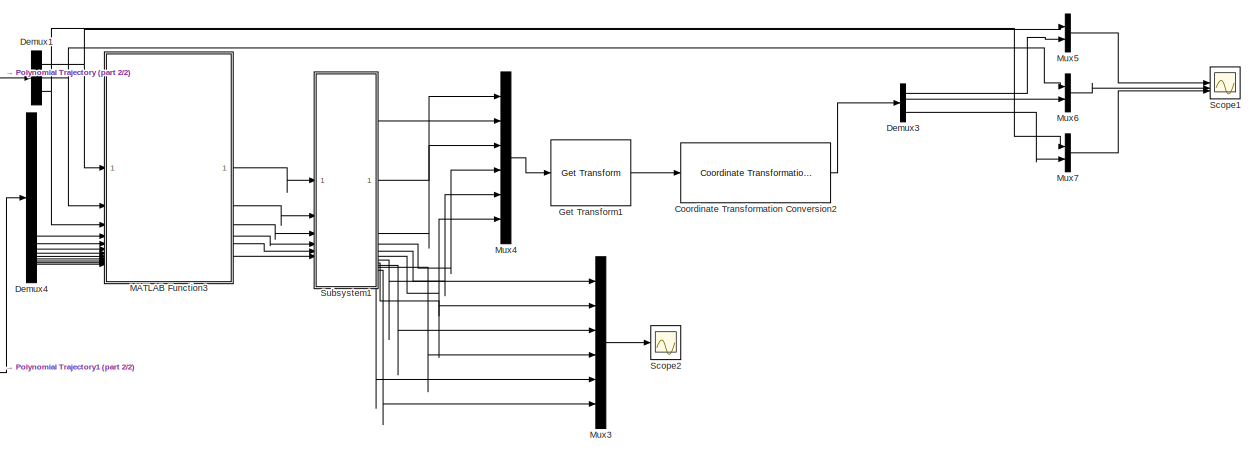
[diagram: root canvas - part 1/2, most of the canvas]
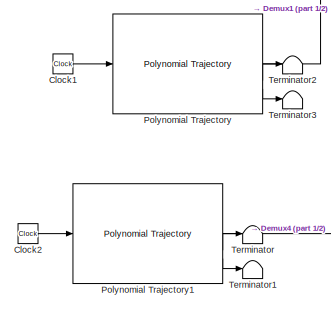
[diagram: root canvas - part 2/2, middle left region]
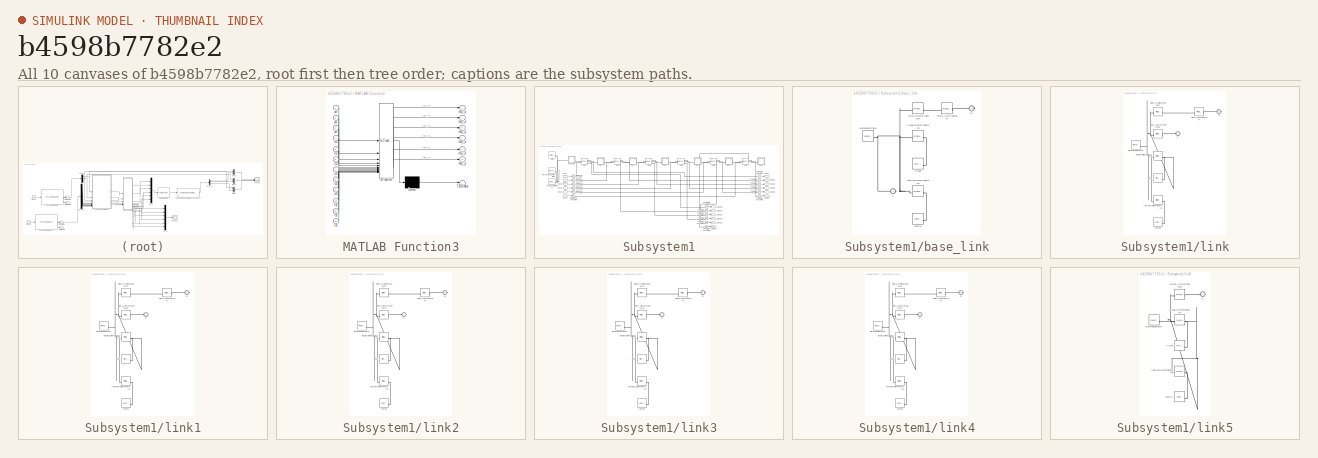
[diagram: thumbnail index - all 10 canvases of the model, root first then tree order]
MODEL slx_b4598b7782e2
KIND model
CONFIG AbsTol = auto
CONFIG EnableMultiTasking = off
CONFIG FixedStep = auto
CONFIG MaxStep = auto
CONFIG MinStep = auto
CONFIG RelTol = 1e-3
CONFIG SampleTimeConstraint = Unconstrained
CONFIG SolverName = VariableStepAuto
CONFIG StartTime = 0.0
CONFIG StopTime = 10.0
BLOCK [Clock] Clock1
BLOCK [Clock] Clock2
BLOCK [Reference] Coordinate Transformation Conversion2  REF=robotcorelib/Coordinate Transformation Conversion
  SourceBlock = robotcorelib/Coordinate Transformation Conversion
  SourceType = robotics.slcore.internal.block.CoordinateTransformationConversion
BLOCK [Demux] Demux1
  Outputs = 3
BLOCK [Demux] Demux3
  Outputs = 3
BLOCK [Demux] Demux4
  Outputs = 9
BLOCK [Reference] Get Transform1  REF=robotmaniplib/Get Transform
  SourceBlock = robotmaniplib/Get Transform
  SourceType = Get Transform
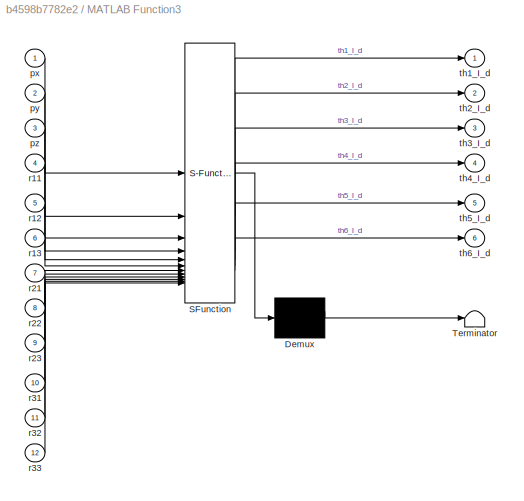
BLOCK [SubSystem] MATLAB Function3
  ErrorFcn = Stateflow.Translate.translate
  PermitHierarchicalResolution = ExplicitOnly
  SFBlockType = MATLAB Function
  TreatAsAtomicUnit = on
BLOCK [Demux] MATLAB Function3/ Demux 
  Outputs = 1
BLOCK [S-Function] MATLAB Function3/ SFunction 
  EnableBusSupport = off
  FunctionName = sf_sfun
  PortCounts = [12 7]
  SFcnIsStateOwnerBlock = off
  SFunctionDeploymentMode = off
  Tag = Stateflow S-Function 2
BLOCK [Terminator] MATLAB Function3/ Terminator 
BLOCK [Inport] MATLAB Function3/px
BLOCK [Inport] MATLAB Function3/py
  Port = 2
BLOCK [Inport] MATLAB Function3/pz
  Port = 3
BLOCK [Inport] MATLAB Function3/r11
  Port = 4
BLOCK [Inport] MATLAB Function3/r12
  Port = 5
BLOCK [Inport] MATLAB Function3/r13
  Port = 6
BLOCK [Inport] MATLAB Function3/r21
  Port = 7
BLOCK [Inport] MATLAB Function3/r22
  Port = 8
BLOCK [Inport] MATLAB Function3/r23
  Port = 9
BLOCK [Inport] MATLAB Function3/r31
  Port = 10
BLOCK [Inport] MATLAB Function3/r32
  Port = 11
BLOCK [Inport] MATLAB Function3/r33
  Port = 12
BLOCK [Outport] MATLAB Function3/th1_I_d
BLOCK [Outport] MATLAB Function3/th2_I_d
  Port = 2
BLOCK [Outport] MATLAB Function3/th3_I_d
  Port = 3
BLOCK [Outport] MATLAB Function3/th4_I_d
  Port = 4
BLOCK [Outport] MATLAB Function3/th5_I_d
  Port = 5
BLOCK [Outport] MATLAB Function3/th6_I_d
  Port = 6
BLOCK [Mux] Mux3
  DisplayOption = bar
  Inputs = 6
BLOCK [Mux] Mux4
  DisplayOption = bar
  Inputs = 6
BLOCK [Mux] Mux5
  DisplayOption = bar
  Inputs = 2
BLOCK [Mux] Mux6
  DisplayOption = bar
  Inputs = 2
BLOCK [Mux] Mux7
  DisplayOption = bar
  Inputs = 2
BLOCK [Reference] Polynomial Trajectory  REF=robotcorelib/Polynomial Trajectory
  LibrarySourceBlock = robotutilslib/Polynomial Trajectory
  SourceBlock = robotcorelib/Polynomial Trajectory
  SourceType = robotics.slcore.internal.block.PolyTrajSys
BLOCK [Reference] Polynomial Trajectory1  REF=robotcorelib/Polynomial Trajectory
  LibrarySourceBlock = robotutilslib/Polynomial Trajectory
  SourceBlock = robotcorelib/Polynomial Trajectory
  SourceType = robotics.slcore.internal.block.PolyTrajSys
BLOCK [Scope] Scope1
  Floating = off
  NumInputPorts = 3
  ScopeSpecificationString = Simulink.scopes.TimeScopeBlockCfg('CurrentConfiguration', extmgr.ConfigurationSet(extmgr.Configuration('Core','General UI',true),extmgr.Configuration('Core','Source UI',true),extmgr.Configuration('Sources','WiredSimulink',true,'DataLoggingVariableName','ScopeData2'),extmgr.Configuration('Visuals','Time Domain',true,'SerializedDisplays',{struct('MinYLimReal','-0.00297','MaxYLimReal','0.69076','YLab...<+3098ch>
BLOCK [Scope] Scope2
  Floating = off
  NumInputPorts = 1
  ScopeSpecificationString = Simulink.scopes.TimeScopeBlockCfg('CurrentConfiguration', extmgr.ConfigurationSet(extmgr.Configuration('Core','General UI',true,'FigureColor',[0 0 0]),extmgr.Configuration('Core','Source UI',true),extmgr.Configuration('Sources','WiredSimulink',true),extmgr.Configuration('Visuals','Time Domain',true,'SerializedDisplays',{struct('MinYLimReal','-1.25','MaxYLimReal','1.25','YLabelReal','','MinYLimMag'...<+1729ch>
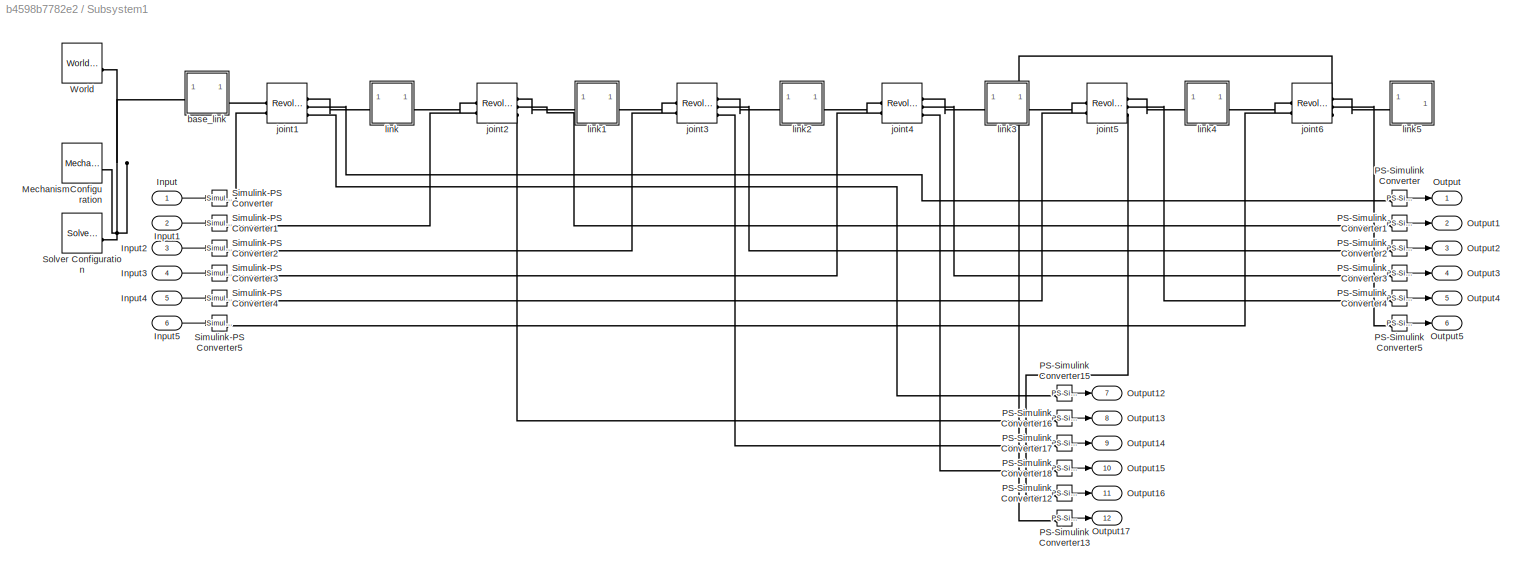
BLOCK [SubSystem] Subsystem1
BLOCK [Inport] Subsystem1/Input
BLOCK [Inport] Subsystem1/Input1
  Port = 2
BLOCK [Inport] Subsystem1/Input2
  Port = 3
BLOCK [Inport] Subsystem1/Input3
  Port = 4
BLOCK [Inport] Subsystem1/Input4
  Port = 5
BLOCK [Inport] Subsystem1/Input5
  Port = 6
BLOCK [Reference] Subsystem1/MechanismConfiguration  REF=sm_lib/Utilities/Mechanism
Configuration
  SourceBlock = sm_lib/Utilities/Mechanism\nConfiguration
  SourceType = Mechanism\nConfiguration
BLOCK [Outport] Subsystem1/Output
BLOCK [Outport] Subsystem1/Output1
  Port = 2
BLOCK [Outport] Subsystem1/Output12
  Port = 7
BLOCK [Outport] Subsystem1/Output13
  Port = 8
BLOCK [Outport] Subsystem1/Output14
  Port = 9
BLOCK [Outport] Subsystem1/Output15
  Port = 10
BLOCK [Outport] Subsystem1/Output16
  Port = 11
BLOCK [Outport] Subsystem1/Output17
  Port = 12
BLOCK [Outport] Subsystem1/Output2
  Port = 3
BLOCK [Outport] Subsystem1/Output3
  Port = 4
BLOCK [Outport] Subsystem1/Output4
  Port = 5
BLOCK [Outport] Subsystem1/Output5
  Port = 6
BLOCK [Reference] Subsystem1/PS-Simulink Converter  REF=nesl_utility/PS-Simulink
Converter
  SourceBlock = nesl_utility/PS-Simulink\nConverter
  SourceType = PS-Simulink\nConverter
BLOCK [Reference] Subsystem1/PS-Simulink Converter1  REF=nesl_utility/PS-Simulink
Converter
  SourceBlock = nesl_utility/PS-Simulink\nConverter
  SourceType = PS-Simulink\nConverter
BLOCK [Reference] Subsystem1/PS-Simulink Converter12  REF=nesl_utility/PS-Simulink
Converter
  SourceBlock = nesl_utility/PS-Simulink\nConverter
  SourceType = PS-Simulink\nConverter
BLOCK [Reference] Subsystem1/PS-Simulink Converter13  REF=nesl_utility/PS-Simulink
Converter
  SourceBlock = nesl_utility/PS-Simulink\nConverter
  SourceType = PS-Simulink\nConverter
BLOCK [Reference] Subsystem1/PS-Simulink Converter15  REF=nesl_utility/PS-Simulink
Converter
  SourceBlock = nesl_utility/PS-Simulink\nConverter
  SourceType = PS-Simulink\nConverter
BLOCK [Reference] Subsystem1/PS-Simulink Converter16  REF=nesl_utility/PS-Simulink
Converter
  SourceBlock = nesl_utility/PS-Simulink\nConverter
  SourceType = PS-Simulink\nConverter
BLOCK [Reference] Subsystem1/PS-Simulink Converter17  REF=nesl_utility/PS-Simulink
Converter
  SourceBlock = nesl_utility/PS-Simulink\nConverter
  SourceType = PS-Simulink\nConverter
BLOCK [Reference] Subsystem1/PS-Simulink Converter18  REF=nesl_utility/PS-Simulink
Converter
  SourceBlock = nesl_utility/PS-Simulink\nConverter
  SourceType = PS-Simulink\nConverter
BLOCK [Reference] Subsystem1/PS-Simulink Converter2  REF=nesl_utility/PS-Simulink
Converter
  SourceBlock = nesl_utility/PS-Simulink\nConverter
  SourceType = PS-Simulink\nConverter
BLOCK [Reference] Subsystem1/PS-Simulink Converter3  REF=nesl_utility/PS-Simulink
Converter
  SourceBlock = nesl_utility/PS-Simulink\nConverter
  SourceType = PS-Simulink\nConverter
BLOCK [Reference] Subsystem1/PS-Simulink Converter4  REF=nesl_utility/PS-Simulink
Converter
  SourceBlock = nesl_utility/PS-Simulink\nConverter
  SourceType = PS-Simulink\nConverter
BLOCK [Reference] Subsystem1/PS-Simulink Converter5  REF=nesl_utility/PS-Simulink
Converter
  SourceBlock = nesl_utility/PS-Simulink\nConverter
  SourceType = PS-Simulink\nConverter
BLOCK [Reference] Subsystem1/Simulink-PS Converter  REF=nesl_utility/Simulink-PS
Converter
  SourceBlock = nesl_utility/Simulink-PS\nConverter
  SourceType = Simulink-PS\nConverter
BLOCK [Reference] Subsystem1/Simulink-PS Converter1  REF=nesl_utility/Simulink-PS
Converter
  SourceBlock = nesl_utility/Simulink-PS\nConverter
  SourceType = Simulink-PS\nConverter
BLOCK [Reference] Subsystem1/Simulink-PS Converter2  REF=nesl_utility/Simulink-PS
Converter
  SourceBlock = nesl_utility/Simulink-PS\nConverter
  SourceType = Simulink-PS\nConverter
BLOCK [Reference] Subsystem1/Simulink-PS Converter3  REF=nesl_utility/Simulink-PS
Converter
  SourceBlock = nesl_utility/Simulink-PS\nConverter
  SourceType = Simulink-PS\nConverter
BLOCK [Reference] Subsystem1/Simulink-PS Converter4  REF=nesl_utility/Simulink-PS
Converter
  SourceBlock = nesl_utility/Simulink-PS\nConverter
  SourceType = Simulink-PS\nConverter
BLOCK [Reference] Subsystem1/Simulink-PS Converter5  REF=nesl_utility/Simulink-PS
Converter
  SourceBlock = nesl_utility/Simulink-PS\nConverter
  SourceType = Simulink-PS\nConverter
BLOCK [Reference] Subsystem1/Solver Configuration  REF=nesl_utility/Solver
Configuration
  SourceBlock = nesl_utility/Solver\nConfiguration
  SourceType = Solver\nConfiguration
BLOCK [Reference] Subsystem1/World  REF=sm_lib/Frames and
Transforms/World Frame
  SourceBlock = sm_lib/Frames and\nTransforms/World Frame
  SourceType = World Frame
BLOCK [SubSystem] Subsystem1/base_link
BLOCK [PMIOPort] Subsystem1/base_link/F
  Side = Left
BLOCK [PMIOPort] Subsystem1/base_link/F1
  Port = 2
  Side = Right
BLOCK [Reference] Subsystem1/base_link/Inertia  REF=sm_lib/Body Elements/Inertia
  SourceBlock = sm_lib/Body Elements/Inertia
  SourceType = Inertia
BLOCK [Reference] Subsystem1/base_link/InertiaOriginTransform  REF=sm_lib/Frames and
Transforms/Rigid
Transform
  SourceBlock = sm_lib/Frames and\nTransforms/Rigid\nTransform
  SourceType = Rigid\nTransform
BLOCK [Reference] Subsystem1/base_link/ReferenceFrame  REF=sm_lib/Frames and
Transforms/Reference
Frame
  SourceBlock = sm_lib/Frames and\nTransforms/Reference\nFrame
  SourceType = Reference\nFrame
BLOCK [Reference] Subsystem1/base_link/Visual  REF=sm_lib/Body Elements/File Solid
  SourceBlock = sm_lib/Body Elements/File Solid
  SourceType = File Solid
BLOCK [Reference] Subsystem1/base_link/VisualOriginTransform  REF=sm_lib/Frames and
Transforms/Rigid
Transform
  SourceBlock = sm_lib/Frames and\nTransforms/Rigid\nTransform
  SourceType = Rigid\nTransform
BLOCK [Reference] Subsystem1/base_link/joint1_AxisTransform  REF=sm_lib/Frames and
Transforms/Rigid
Transform
  SourceBlock = sm_lib/Frames and\nTransforms/Rigid\nTransform
  SourceType = Rigid\nTransform
BLOCK [Reference] Subsystem1/base_link/joint1_OriginTransform  REF=sm_lib/Frames and
Transforms/Rigid
Transform
  SourceBlock = sm_lib/Frames and\nTransforms/Rigid\nTransform
  SourceType = Rigid\nTransform
BLOCK [Reference] Subsystem1/joint1  REF=sm_lib/Joints/Revolute Joint
  SourceBlock = sm_lib/Joints/Revolute Joint
  SourceType = Revolute Joint
BLOCK [Reference] Subsystem1/joint2  REF=sm_lib/Joints/Revolute Joint
  SourceBlock = sm_lib/Joints/Revolute Joint
  SourceType = Revolute Joint
BLOCK [Reference] Subsystem1/joint3  REF=sm_lib/Joints/Revolute Joint
  SourceBlock = sm_lib/Joints/Revolute Joint
  SourceType = Revolute Joint
BLOCK [Reference] Subsystem1/joint4  REF=sm_lib/Joints/Revolute Joint
  SourceBlock = sm_lib/Joints/Revolute Joint
  SourceType = Revolute Joint
BLOCK [Reference] Subsystem1/joint5  REF=sm_lib/Joints/Revolute Joint
  SourceBlock = sm_lib/Joints/Revolute Joint
  SourceType = Revolute Joint
BLOCK [Reference] Subsystem1/joint6  REF=sm_lib/Joints/Revolute Joint
  SourceBlock = sm_lib/Joints/Revolute Joint
  SourceType = Revolute Joint
BLOCK [SubSystem] Subsystem1/link
BLOCK [PMIOPort] Subsystem1/link/F
  Side = Left
BLOCK [PMIOPort] Subsystem1/link/F1
  Port = 2
  Side = Right
BLOCK [Reference] Subsystem1/link/Inertia  REF=sm_lib/Body Elements/Inertia
  SourceBlock = sm_lib/Body Elements/Inertia
  SourceType = Inertia
BLOCK [Reference] Subsystem1/link/InertiaOriginTransform  REF=sm_lib/Frames and
Transforms/Rigid
Transform
  SourceBlock = sm_lib/Frames and\nTransforms/Rigid\nTransform
  SourceType = Rigid\nTransform
BLOCK [Reference] Subsystem1/link/ReferenceFrame  REF=sm_lib/Frames and
Transforms/Reference
Frame
  SourceBlock = sm_lib/Frames and\nTransforms/Reference\nFrame
  SourceType = Reference\nFrame
BLOCK [Reference] Subsystem1/link/Visual  REF=sm_lib/Body Elements/File Solid
  SourceBlock = sm_lib/Body Elements/File Solid
  SourceType = File Solid
BLOCK [Reference] Subsystem1/link/VisualOriginTransform  REF=sm_lib/Frames and
Transforms/Rigid
Transform
  SourceBlock = sm_lib/Frames and\nTransforms/Rigid\nTransform
  SourceType = Rigid\nTransform
BLOCK [Reference] Subsystem1/link/joint1_AxisInvTransform  REF=sm_lib/Frames and
Transforms/Rigid
Transform
  SourceBlock = sm_lib/Frames and\nTransforms/Rigid\nTransform
  SourceType = Rigid\nTransform
BLOCK [Reference] Subsystem1/link/joint2_AxisTransform  REF=sm_lib/Frames and
Transforms/Rigid
Transform
  SourceBlock = sm_lib/Frames and\nTransforms/Rigid\nTransform
  SourceType = Rigid\nTransform
BLOCK [Reference] Subsystem1/link/joint2_OriginTransform  REF=sm_lib/Frames and
Transforms/Rigid
Transform
  SourceBlock = sm_lib/Frames and\nTransforms/Rigid\nTransform
  SourceType = Rigid\nTransform
BLOCK [SubSystem] Subsystem1/link1
BLOCK [PMIOPort] Subsystem1/link1/F
  Side = Left
BLOCK [PMIOPort] Subsystem1/link1/F1
  Port = 2
  Side = Right
BLOCK [Reference] Subsystem1/link1/Inertia  REF=sm_lib/Body Elements/Inertia
  SourceBlock = sm_lib/Body Elements/Inertia
  SourceType = Inertia
BLOCK [Reference] Subsystem1/link1/InertiaOriginTransform  REF=sm_lib/Frames and
Transforms/Rigid
Transform
  SourceBlock = sm_lib/Frames and\nTransforms/Rigid\nTransform
  SourceType = Rigid\nTransform
BLOCK [Reference] Subsystem1/link1/ReferenceFrame  REF=sm_lib/Frames and
Transforms/Reference
Frame
  SourceBlock = sm_lib/Frames and\nTransforms/Reference\nFrame
  SourceType = Reference\nFrame
BLOCK [Reference] Subsystem1/link1/Visual  REF=sm_lib/Body Elements/File Solid
  SourceBlock = sm_lib/Body Elements/File Solid
  SourceType = File Solid
BLOCK [Reference] Subsystem1/link1/VisualOriginTransform  REF=sm_lib/Frames and
Transforms/Rigid
Transform
  SourceBlock = sm_lib/Frames and\nTransforms/Rigid\nTransform
  SourceType = Rigid\nTransform
BLOCK [Reference] Subsystem1/link1/joint2_AxisInvTransform  REF=sm_lib/Frames and
Transforms/Rigid
Transform
  SourceBlock = sm_lib/Frames and\nTransforms/Rigid\nTransform
  SourceType = Rigid\nTransform
BLOCK [Reference] Subsystem1/link1/joint3_AxisTransform  REF=sm_lib/Frames and
Transforms/Rigid
Transform
  SourceBlock = sm_lib/Frames and\nTransforms/Rigid\nTransform
  SourceType = Rigid\nTransform
BLOCK [Reference] Subsystem1/link1/joint3_OriginTransform  REF=sm_lib/Frames and
Transforms/Rigid
Transform
  SourceBlock = sm_lib/Frames and\nTransforms/Rigid\nTransform
  SourceType = Rigid\nTransform
BLOCK [SubSystem] Subsystem1/link2
BLOCK [PMIOPort] Subsystem1/link2/F
  Side = Left
BLOCK [PMIOPort] Subsystem1/link2/F1
  Port = 2
  Side = Right
BLOCK [Reference] Subsystem1/link2/Inertia  REF=sm_lib/Body Elements/Inertia
  SourceBlock = sm_lib/Body Elements/Inertia
  SourceType = Inertia
BLOCK [Reference] Subsystem1/link2/InertiaOriginTransform  REF=sm_lib/Frames and
Transforms/Rigid
Transform
  SourceBlock = sm_lib/Frames and\nTransforms/Rigid\nTransform
  SourceType = Rigid\nTransform
BLOCK [Reference] Subsystem1/link2/ReferenceFrame  REF=sm_lib/Frames and
Transforms/Reference
Frame
  SourceBlock = sm_lib/Frames and\nTransforms/Reference\nFrame
  SourceType = Reference\nFrame
BLOCK [Reference] Subsystem1/link2/Visual  REF=sm_lib/Body Elements/File Solid
  SourceBlock = sm_lib/Body Elements/File Solid
  SourceType = File Solid
BLOCK [Reference] Subsystem1/link2/VisualOriginTransform  REF=sm_lib/Frames and
Transforms/Rigid
Transform
  SourceBlock = sm_lib/Frames and\nTransforms/Rigid\nTransform
  SourceType = Rigid\nTransform
BLOCK [Reference] Subsystem1/link2/joint3_AxisInvTransform  REF=sm_lib/Frames and
Transforms/Rigid
Transform
  SourceBlock = sm_lib/Frames and\nTransforms/Rigid\nTransform
  SourceType = Rigid\nTransform
BLOCK [Reference] Subsystem1/link2/joint4_AxisTransform  REF=sm_lib/Frames and
Transforms/Rigid
Transform
  SourceBlock = sm_lib/Frames and\nTransforms/Rigid\nTransform
  SourceType = Rigid\nTransform
BLOCK [Reference] Subsystem1/link2/joint4_OriginTransform  REF=sm_lib/Frames and
Transforms/Rigid
Transform
  SourceBlock = sm_lib/Frames and\nTransforms/Rigid\nTransform
  SourceType = Rigid\nTransform
BLOCK [SubSystem] Subsystem1/link3
BLOCK [PMIOPort] Subsystem1/link3/F
  Side = Left
BLOCK [PMIOPort] Subsystem1/link3/F1
  Port = 2
  Side = Right
BLOCK [Reference] Subsystem1/link3/Inertia  REF=sm_lib/Body Elements/Inertia
  SourceBlock = sm_lib/Body Elements/Inertia
  SourceType = Inertia
BLOCK [Reference] Subsystem1/link3/InertiaOriginTransform  REF=sm_lib/Frames and
Transforms/Rigid
Transform
  SourceBlock = sm_lib/Frames and\nTransforms/Rigid\nTransform
  SourceType = Rigid\nTransform
BLOCK [Reference] Subsystem1/link3/ReferenceFrame  REF=sm_lib/Frames and
Transforms/Reference
Frame
  SourceBlock = sm_lib/Frames and\nTransforms/Reference\nFrame
  SourceType = Reference\nFrame
BLOCK [Reference] Subsystem1/link3/Visual  REF=sm_lib/Body Elements/File Solid
  SourceBlock = sm_lib/Body Elements/File Solid
  SourceType = File Solid
BLOCK [Reference] Subsystem1/link3/VisualOriginTransform  REF=sm_lib/Frames and
Transforms/Rigid
Transform
  SourceBlock = sm_lib/Frames and\nTransforms/Rigid\nTransform
  SourceType = Rigid\nTransform
BLOCK [Reference] Subsystem1/link3/joint4_AxisInvTransform  REF=sm_lib/Frames and
Transforms/Rigid
Transform
  SourceBlock = sm_lib/Frames and\nTransforms/Rigid\nTransform
  SourceType = Rigid\nTransform
BLOCK [Reference] Subsystem1/link3/joint5_AxisTransform  REF=sm_lib/Frames and
Transforms/Rigid
Transform
  SourceBlock = sm_lib/Frames and\nTransforms/Rigid\nTransform
  SourceType = Rigid\nTransform
BLOCK [Reference] Subsystem1/link3/joint5_OriginTransform  REF=sm_lib/Frames and
Transforms/Rigid
Transform
  SourceBlock = sm_lib/Frames and\nTransforms/Rigid\nTransform
  SourceType = Rigid\nTransform
BLOCK [SubSystem] Subsystem1/link4
BLOCK [PMIOPort] Subsystem1/link4/F
  Side = Left
BLOCK [PMIOPort] Subsystem1/link4/F1
  Port = 2
  Side = Right
BLOCK [Reference] Subsystem1/link4/Inertia  REF=sm_lib/Body Elements/Inertia
  SourceBlock = sm_lib/Body Elements/Inertia
  SourceType = Inertia
BLOCK [Reference] Subsystem1/link4/InertiaOriginTransform  REF=sm_lib/Frames and
Transforms/Rigid
Transform
  SourceBlock = sm_lib/Frames and\nTransforms/Rigid\nTransform
  SourceType = Rigid\nTransform
BLOCK [Reference] Subsystem1/link4/ReferenceFrame  REF=sm_lib/Frames and
Transforms/Reference
Frame
  SourceBlock = sm_lib/Frames and\nTransforms/Reference\nFrame
  SourceType = Reference\nFrame
BLOCK [Reference] Subsystem1/link4/Visual  REF=sm_lib/Body Elements/File Solid
  SourceBlock = sm_lib/Body Elements/File Solid
  SourceType = File Solid
BLOCK [Reference] Subsystem1/link4/VisualOriginTransform  REF=sm_lib/Frames and
Transforms/Rigid
Transform
  SourceBlock = sm_lib/Frames and\nTransforms/Rigid\nTransform
  SourceType = Rigid\nTransform
BLOCK [Reference] Subsystem1/link4/joint5_AxisInvTransform  REF=sm_lib/Frames and
Transforms/Rigid
Transform
  SourceBlock = sm_lib/Frames and\nTransforms/Rigid\nTransform
  SourceType = Rigid\nTransform
BLOCK [Reference] Subsystem1/link4/joint6_AxisTransform  REF=sm_lib/Frames and
Transforms/Rigid
Transform
  SourceBlock = sm_lib/Frames and\nTransforms/Rigid\nTransform
  SourceType = Rigid\nTransform
BLOCK [Reference] Subsystem1/link4/joint6_OriginTransform  REF=sm_lib/Frames and
Transforms/Rigid
Transform
  SourceBlock = sm_lib/Frames and\nTransforms/Rigid\nTransform
  SourceType = Rigid\nTransform
BLOCK [SubSystem] Subsystem1/link5
BLOCK [PMIOPort] Subsystem1/link5/F
  Side = Left
BLOCK [Reference] Subsystem1/link5/Inertia  REF=sm_lib/Body Elements/Inertia
  SourceBlock = sm_lib/Body Elements/Inertia
  SourceType = Inertia
BLOCK [Reference] Subsystem1/link5/InertiaOriginTransform  REF=sm_lib/Frames and
Transforms/Rigid
Transform
  SourceBlock = sm_lib/Frames and\nTransforms/Rigid\nTransform
  SourceType = Rigid\nTransform
BLOCK [Reference] Subsystem1/link5/ReferenceFrame  REF=sm_lib/Frames and
Transforms/Reference
Frame
  SourceBlock = sm_lib/Frames and\nTransforms/Reference\nFrame
  SourceType = Reference\nFrame
BLOCK [Reference] Subsystem1/link5/Visual  REF=sm_lib/Body Elements/File Solid
  SourceBlock = sm_lib/Body Elements/File Solid
  SourceType = File Solid
BLOCK [Reference] Subsystem1/link5/VisualOriginTransform  REF=sm_lib/Frames and
Transforms/Rigid
Transform
  SourceBlock = sm_lib/Frames and\nTransforms/Rigid\nTransform
  SourceType = Rigid\nTransform
BLOCK [Reference] Subsystem1/link5/joint6_AxisInvTransform  REF=sm_lib/Frames and
Transforms/Rigid
Transform
  SourceBlock = sm_lib/Frames and\nTransforms/Rigid\nTransform
  SourceType = Rigid\nTransform
BLOCK [Terminator] Terminator
BLOCK [Terminator] Terminator1
BLOCK [Terminator] Terminator2
BLOCK [Terminator] Terminator3
LINE Clock1:1 -> Polynomial Trajectory:1
LINE Clock2:1 -> Polynomial Trajectory1:1
LINE Coordinate Transformation Conversion2:1 -> Demux3:1
NET Demux1:1 -> MATLAB Function3:1, Mux5:1
NET Demux1:2 -> MATLAB Function3:2, Mux6:1
NET Demux1:3 -> MATLAB Function3:3, Mux7:1
LINE Demux3:1 -> Mux5:2
LINE Demux3:2 -> Mux6:2
LINE Demux3:3 -> Mux7:2
LINE Demux4:1 -> MATLAB Function3:4
LINE Demux4:2 -> MATLAB Function3:5
LINE Demux4:3 -> MATLAB Function3:6
LINE Demux4:4 -> MATLAB Function3:7
LINE Demux4:5 -> MATLAB Function3:8
LINE Demux4:6 -> MATLAB Function3:9
LINE Demux4:7 -> MATLAB Function3:10
LINE Demux4:8 -> MATLAB Function3:11
LINE Demux4:9 -> MATLAB Function3:12
LINE Get Transform1:1 -> Coordinate Transformation Conversion2:1
LINE MATLAB Function3:1 -> Subsystem1:1
LINE MATLAB Function3:2 -> Subsystem1:2
LINE MATLAB Function3:3 -> Subsystem1:3
LINE MATLAB Function3:4 -> Subsystem1:4
LINE MATLAB Function3:5 -> Subsystem1:5
LINE MATLAB Function3:6 -> Subsystem1:6
LINE Mux3:1 -> Scope2:1
LINE Mux4:1 -> Get Transform1:1
LINE Mux5:1 -> Scope1:1
LINE Mux6:1 -> Scope1:2
LINE Mux7:1 -> Scope1:3
LINE Polynomial Trajectory1:1 -> Demux4:1
LINE Polynomial Trajectory1:2 -> Terminator:1
LINE Polynomial Trajectory1:3 -> Terminator1:1
LINE Polynomial Trajectory:1 -> Demux1:1
LINE Polynomial Trajectory:2 -> Terminator2:1
LINE Polynomial Trajectory:3 -> Terminator3:1
LINE Subsystem1/Input1:1 -> Subsystem1/Simulink-PS Converter1:1
LINE Subsystem1/Input2:1 -> Subsystem1/Simulink-PS Converter2:1
LINE Subsystem1/Input3:1 -> Subsystem1/Simulink-PS Converter3:1
LINE Subsystem1/Input4:1 -> Subsystem1/Simulink-PS Converter4:1
LINE Subsystem1/Input5:1 -> Subsystem1/Simulink-PS Converter5:1
LINE Subsystem1/Input:1 -> Subsystem1/Simulink-PS Converter:1
LINE Subsystem1/PS-Simulink Converter12:1 -> Subsystem1/Output16:1
LINE Subsystem1/PS-Simulink Converter13:1 -> Subsystem1/Output17:1
LINE Subsystem1/PS-Simulink Converter15:1 -> Subsystem1/Output12:1
LINE Subsystem1/PS-Simulink Converter16:1 -> Subsystem1/Output13:1
LINE Subsystem1/PS-Simulink Converter17:1 -> Subsystem1/Output14:1
LINE Subsystem1/PS-Simulink Converter18:1 -> Subsystem1/Output15:1
LINE Subsystem1/PS-Simulink Converter1:1 -> Subsystem1/Output1:1
LINE Subsystem1/PS-Simulink Converter2:1 -> Subsystem1/Output2:1
LINE Subsystem1/PS-Simulink Converter3:1 -> Subsystem1/Output3:1
LINE Subsystem1/PS-Simulink Converter4:1 -> Subsystem1/Output4:1
LINE Subsystem1/PS-Simulink Converter5:1 -> Subsystem1/Output5:1
LINE Subsystem1/PS-Simulink Converter:1 -> Subsystem1/Output:1
LINE Subsystem1:1 -> Mux4:1
LINE Subsystem1:10 -> Mux3:4
LINE Subsystem1:11 -> Mux3:5
LINE Subsystem1:12 -> Mux3:6
LINE Subsystem1:2 -> Mux4:2
LINE Subsystem1:3 -> Mux4:3
LINE Subsystem1:4 -> Mux4:4
LINE Subsystem1:5 -> Mux4:5
LINE Subsystem1:6 -> Mux4:6
LINE Subsystem1:7 -> Mux3:1
LINE Subsystem1:8 -> Mux3:2
LINE Subsystem1:9 -> Mux3:3
PNET net1: Subsystem1/MechanismConfiguration:RConn1 -- Subsystem1/Solver Configuration:RConn1 -- Subsystem1/World:RConn1 -- Subsystem1/base_link:LConn1
PLINE Subsystem1/PS-Simulink Converter12:LConn1 -- Subsystem1/joint5:RConn3
PLINE Subsystem1/PS-Simulink Converter13:LConn1 -- Subsystem1/joint6:RConn3
PLINE Subsystem1/PS-Simulink Converter15:LConn1 -- Subsystem1/joint1:RConn3
PLINE Subsystem1/PS-Simulink Converter16:LConn1 -- Subsystem1/joint2:RConn3
PLINE Subsystem1/PS-Simulink Converter17:LConn1 -- Subsystem1/joint3:RConn3
PLINE Subsystem1/PS-Simulink Converter18:LConn1 -- Subsystem1/joint4:RConn3
PLINE Subsystem1/PS-Simulink Converter1:LConn1 -- Subsystem1/joint2:RConn2
PLINE Subsystem1/PS-Simulink Converter2:LConn1 -- Subsystem1/joint3:RConn2
PLINE Subsystem1/PS-Simulink Converter3:LConn1 -- Subsystem1/joint4:RConn2
PLINE Subsystem1/PS-Simulink Converter4:LConn1 -- Subsystem1/joint5:RConn2
PLINE Subsystem1/PS-Simulink Converter5:LConn1 -- Subsystem1/joint6:RConn2
PLINE Subsystem1/PS-Simulink Converter:LConn1 -- Subsystem1/joint1:RConn2
PLINE Subsystem1/Simulink-PS Converter1:RConn1 -- Subsystem1/joint2:LConn2
PLINE Subsystem1/Simulink-PS Converter2:RConn1 -- Subsystem1/joint3:LConn2
PLINE Subsystem1/Simulink-PS Converter3:RConn1 -- Subsystem1/joint4:LConn2
PLINE Subsystem1/Simulink-PS Converter4:RConn1 -- Subsystem1/joint5:LConn2
PLINE Subsystem1/Simulink-PS Converter5:RConn1 -- Subsystem1/joint6:LConn2
PLINE Subsystem1/Simulink-PS Converter:RConn1 -- Subsystem1/joint1:LConn2
PLINE Subsystem1/base_link/F1:RConn1 -- Subsystem1/base_link/joint1_AxisTransform:RConn1
PNET net2: Subsystem1/base_link/F:RConn1 -- Subsystem1/base_link/InertiaOriginTransform:LConn1 -- Subsystem1/base_link/ReferenceFrame:RConn1 -- Subsystem1/base_link/VisualOriginTransform:LConn1 -- Subsystem1/base_link/joint1_OriginTransform:LConn1
PLINE Subsystem1/base_link/Inertia:RConn1 -- Subsystem1/base_link/InertiaOriginTransform:RConn1
PLINE Subsystem1/base_link/Visual:RConn1 -- Subsystem1/base_link/VisualOriginTransform:RConn1
PLINE Subsystem1/base_link/joint1_AxisTransform:LConn1 -- Subsystem1/base_link/joint1_OriginTransform:RConn1
PLINE Subsystem1/base_link:RConn1 -- Subsystem1/joint1:LConn1
PLINE Subsystem1/joint1:RConn1 -- Subsystem1/link:LConn1
PLINE Subsystem1/joint2:LConn1 -- Subsystem1/link:RConn1
PLINE Subsystem1/joint2:RConn1 -- Subsystem1/link1:LConn1
PLINE Subsystem1/joint3:LConn1 -- Subsystem1/link1:RConn1
PLINE Subsystem1/joint3:RConn1 -- Subsystem1/link2:LConn1
PLINE Subsystem1/joint4:LConn1 -- Subsystem1/link2:RConn1
PLINE Subsystem1/joint4:RConn1 -- Subsystem1/link3:LConn1
PLINE Subsystem1/joint5:LConn1 -- Subsystem1/link3:RConn1
PLINE Subsystem1/joint5:RConn1 -- Subsystem1/link4:LConn1
PLINE Subsystem1/joint6:LConn1 -- Subsystem1/link4:RConn1
PLINE Subsystem1/joint6:RConn1 -- Subsystem1/link5:LConn1
PLINE Subsystem1/link/F1:RConn1 -- Subsystem1/link/joint2_AxisTransform:RConn1
PLINE Subsystem1/link/F:RConn1 -- Subsystem1/link/joint1_AxisInvTransform:RConn1
PLINE Subsystem1/link/Inertia:RConn1 -- Subsystem1/link/InertiaOriginTransform:RConn1
PNET net3: Subsystem1/link/InertiaOriginTransform:LConn1 -- Subsystem1/link/ReferenceFrame:RConn1 -- Subsystem1/link/VisualOriginTransform:LConn1 -- Subsystem1/link/joint1_AxisInvTransform:LConn1 -- Subsystem1/link/joint2_OriginTransform:LConn1
PLINE Subsystem1/link/Visual:RConn1 -- Subsystem1/link/VisualOriginTransform:RConn1
PLINE Subsystem1/link/joint2_AxisTransform:LConn1 -- Subsystem1/link/joint2_OriginTransform:RConn1
PLINE Subsystem1/link1/F1:RConn1 -- Subsystem1/link1/joint3_AxisTransform:RConn1
PLINE Subsystem1/link1/F:RConn1 -- Subsystem1/link1/joint2_AxisInvTransform:RConn1
PLINE Subsystem1/link1/Inertia:RConn1 -- Subsystem1/link1/InertiaOriginTransform:RConn1
PNET net4: Subsystem1/link1/InertiaOriginTransform:LConn1 -- Subsystem1/link1/ReferenceFrame:RConn1 -- Subsystem1/link1/VisualOriginTransform:LConn1 -- Subsystem1/link1/joint2_AxisInvTransform:LConn1 -- Subsystem1/link1/joint3_OriginTransform:LConn1
PLINE Subsystem1/link1/Visual:RConn1 -- Subsystem1/link1/VisualOriginTransform:RConn1
PLINE Subsystem1/link1/joint3_AxisTransform:LConn1 -- Subsystem1/link1/joint3_OriginTransform:RConn1
PLINE Subsystem1/link2/F1:RConn1 -- Subsystem1/link2/joint4_AxisTransform:RConn1
PLINE Subsystem1/link2/F:RConn1 -- Subsystem1/link2/joint3_AxisInvTransform:RConn1
PLINE Subsystem1/link2/Inertia:RConn1 -- Subsystem1/link2/InertiaOriginTransform:RConn1
PNET net5: Subsystem1/link2/InertiaOriginTransform:LConn1 -- Subsystem1/link2/ReferenceFrame:RConn1 -- Subsystem1/link2/VisualOriginTransform:LConn1 -- Subsystem1/link2/joint3_AxisInvTransform:LConn1 -- Subsystem1/link2/joint4_OriginTransform:LConn1
PLINE Subsystem1/link2/Visual:RConn1 -- Subsystem1/link2/VisualOriginTransform:RConn1
PLINE Subsystem1/link2/joint4_AxisTransform:LConn1 -- Subsystem1/link2/joint4_OriginTransform:RConn1
PLINE Subsystem1/link3/F1:RConn1 -- Subsystem1/link3/joint5_AxisTransform:RConn1
PLINE Subsystem1/link3/F:RConn1 -- Subsystem1/link3/joint4_AxisInvTransform:RConn1
PLINE Subsystem1/link3/Inertia:RConn1 -- Subsystem1/link3/InertiaOriginTransform:RConn1
PNET net6: Subsystem1/link3/InertiaOriginTransform:LConn1 -- Subsystem1/link3/ReferenceFrame:RConn1 -- Subsystem1/link3/VisualOriginTransform:LConn1 -- Subsystem1/link3/joint4_AxisInvTransform:LConn1 -- Subsystem1/link3/joint5_OriginTransform:LConn1
PLINE Subsystem1/link3/Visual:RConn1 -- Subsystem1/link3/VisualOriginTransform:RConn1
PLINE Subsystem1/link3/joint5_AxisTransform:LConn1 -- Subsystem1/link3/joint5_OriginTransform:RConn1
PLINE Subsystem1/link4/F1:RConn1 -- Subsystem1/link4/joint6_AxisTransform:RConn1
PLINE Subsystem1/link4/F:RConn1 -- Subsystem1/link4/joint5_AxisInvTransform:RConn1
PLINE Subsystem1/link4/Inertia:RConn1 -- Subsystem1/link4/InertiaOriginTransform:RConn1
PNET net7: Subsystem1/link4/InertiaOriginTransform:LConn1 -- Subsystem1/link4/ReferenceFrame:RConn1 -- Subsystem1/link4/VisualOriginTransform:LConn1 -- Subsystem1/link4/joint5_AxisInvTransform:LConn1 -- Subsystem1/link4/joint6_OriginTransform:LConn1
PLINE Subsystem1/link4/Visual:RConn1 -- Subsystem1/link4/VisualOriginTransform:RConn1
PLINE Subsystem1/link4/joint6_AxisTransform:LConn1 -- Subsystem1/link4/joint6_OriginTransform:RConn1
PLINE Subsystem1/link5/F:RConn1 -- Subsystem1/link5/joint6_AxisInvTransform:RConn1
PLINE Subsystem1/link5/Inertia:RConn1 -- Subsystem1/link5/InertiaOriginTransform:RConn1
PNET net8: Subsystem1/link5/InertiaOriginTransform:LConn1 -- Subsystem1/link5/ReferenceFrame:RConn1 -- Subsystem1/link5/VisualOriginTransform:LConn1 -- Subsystem1/link5/joint6_AxisInvTransform:LConn1
PLINE Subsystem1/link5/Visual:RConn1 -- Subsystem1/link5/VisualOriginTransform:RConn1
note: NET lines group one-source signal fan-out (src -> all destinations, sorted); 1:1 wires keep LINE; PNET lines group multi-terminal physical nets as a canonical sorted terminal list (undirected conserving connections); 2-terminal nets keep the pairwise PLINE form
CHART MATLAB Function3 states=1 transitions=1
  STATE_LABEL 'eML_blk_kernel()'
  STATE_LABEL 'SCRIPT:\nfunction [th1_I_d, th2_I_d, th3_I_d, th4_I_d, th5_I_d, th6_I_d] = IF6(px, py, pz, r11, r12, r13, r21, r22, r23, r31, r32, r33)\n\n    T_target = [r11 r12 r13 px; r21 r22 r23 py; r31 r32 r33 pz; 0 0 0 1];\n    T_target = single(T_target);\n\n    % DH parameters (lengths and offsets)\n    d1 = 0.179; a2 = 0.410; a3 = 0.340; d4 = 0.188; d5 = 0.132; d6 = 0.00;\n    \n    % Joint Limits\n    jointLimits...<+3608ch>'
CHART  states=0 transitions=0
